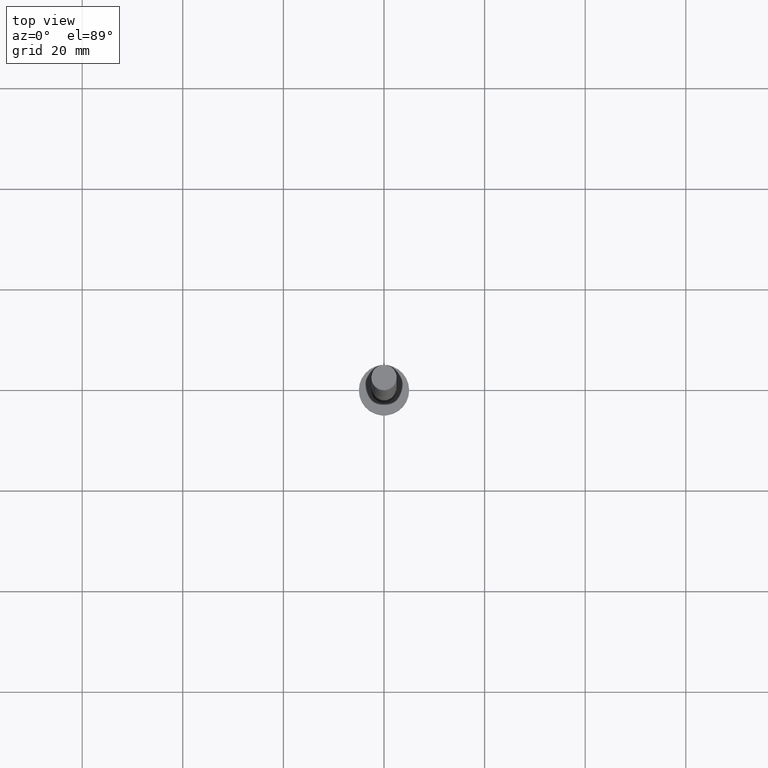
[diagram: clean part render]
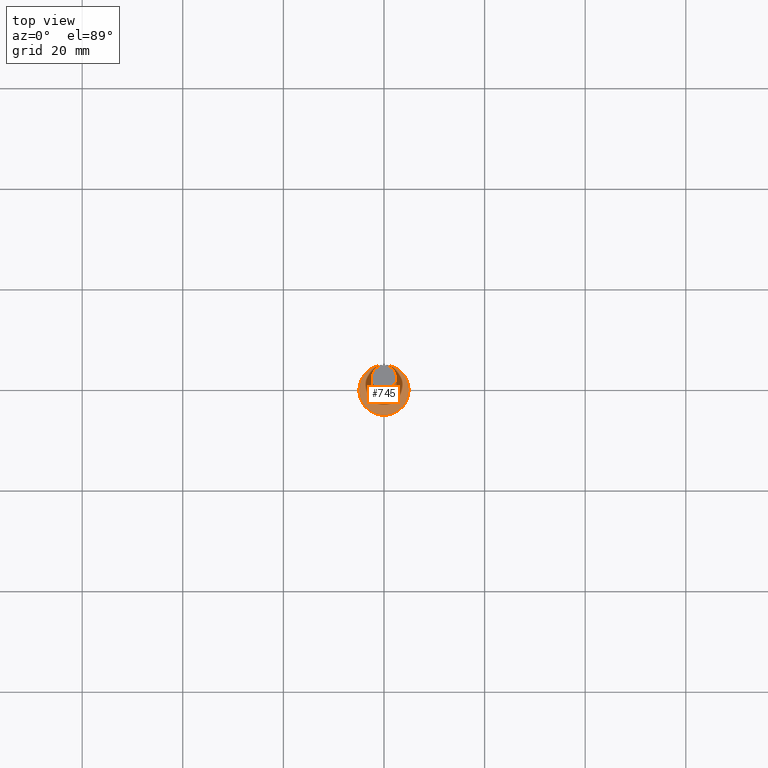
[diagram: same view with one face highlighted and labeled with its STEP entity id]
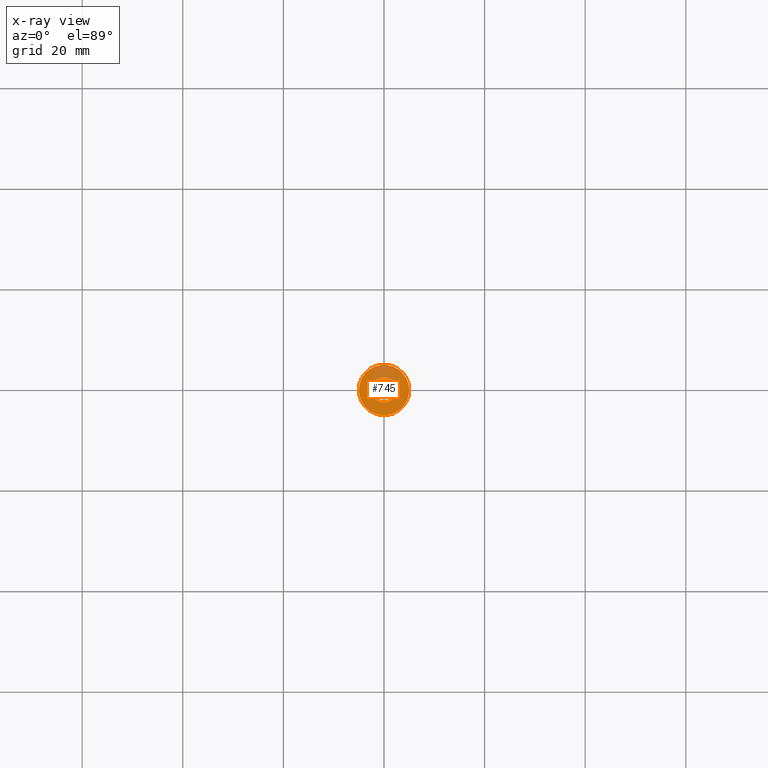
[diagram: x-ray of the same camera — body ghosted, the highlighted face saturated]
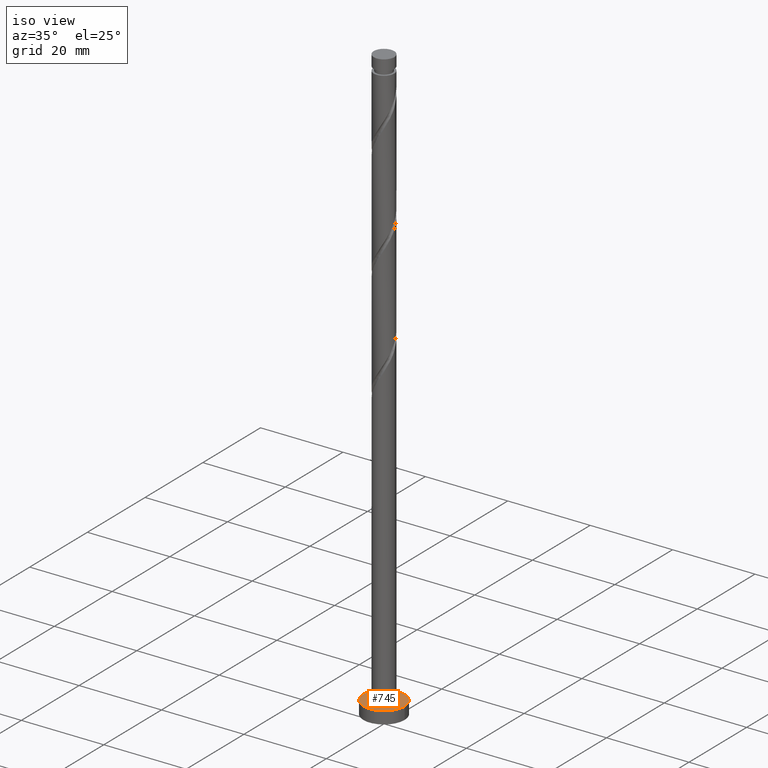
[diagram: same view with one face highlighted and labeled with its STEP entity id]
A machine part, top view. The second image highlights one B-rep face of the part: STEP entity #745.
The next image is the same camera in x-ray: the body ghosted, the highlighted face saturated — about 21% of this face is hidden behind the body in this view.
A second angle (iso view) of the same face is appended — the face is thin or edge-on in the first view.
In plain terms, the highlighted planar face has unit normal (0, 0, 1).
Its self-contained STEP definition (entity closure, byte-faithful):
#20 = CARTESIAN_POINT ( 'NONE',  ( 0.000000000000000000, 0.000000000000000000, 3.000000000000000000 ) ) ;
#60 = DIRECTION ( 'NONE',  ( 1.000000000000000000, 0.000000000000000000, 0.000000000000000000 ) ) ;
#67 = AXIS2_PLACEMENT_3D ( 'NONE', #706, #1027, #208 ) ;
#108 = VERTEX_POINT ( 'NONE', #1584 ) ;
#199 = AXIS2_PLACEMENT_3D ( 'NONE', #848, #1237, #581 ) ;
#208 = DIRECTION ( 'NONE',  ( 1.000000000000000000, 0.000000000000000000, -0.000000000000000000 ) ) ;
#296 = DIRECTION ( 'NONE',  ( 0.000000000000000000, 0.000000000000000000, 1.000000000000000000 ) ) ;
#308 = DIRECTION ( 'NONE',  ( 0.000000000000000000, 0.000000000000000000, 1.000000000000000000 ) ) ;
#333 = FACE_BOUND ( 'NONE', #922, .T. ) ;
#371 = AXIS2_PLACEMENT_3D ( 'NONE', #775, #782, #1162 ) ;
#497 = CARTESIAN_POINT ( 'NONE',  ( -2.500000000000000000, 0.000000000000000000, 3.000000000000000000 ) ) ;
#535 = CARTESIAN_POINT ( 'NONE',  ( 5.000000000000000000, 6.123233995736766282E-16, 3.000000000000000000 ) ) ;
#557 = AXIS2_PLACEMENT_3D ( 'NONE', #20, #296, #1314 ) ;
#581 = DIRECTION ( 'NONE',  ( 1.000000000000000000, 0.000000000000000000, 0.000000000000000000 ) ) ;
#598 = PLANE ( 'NONE',  #67 ) ;
#706 = CARTESIAN_POINT ( 'NONE',  ( 0.000000000000000000, 0.000000000000000000, 3.000000000000000000 ) ) ;
#745 = ADVANCED_FACE ( 'NONE', ( #333, #850 ), #598, .T. ) ;
#775 = CARTESIAN_POINT ( 'NONE',  ( 0.000000000000000000, 0.000000000000000000, 3.000000000000000000 ) ) ;
#782 = DIRECTION ( 'NONE',  ( 0.000000000000000000, 0.000000000000000000, 1.000000000000000000 ) ) ;
#786 = VERTEX_POINT ( 'NONE', #497 ) ;
#796 = CIRCLE ( 'NONE', #1631, 5.000000000000000000 ) ;
#830 = CARTESIAN_POINT ( 'NONE',  ( 2.500000000000000000, 3.061616997868383141E-16, 3.000000000000000000 ) ) ;
#848 = CARTESIAN_POINT ( 'NONE',  ( 0.000000000000000000, 0.000000000000000000, 3.000000000000000000 ) ) ;
#850 = FACE_OUTER_BOUND ( 'NONE', #1272, .T. ) ;
#922 = EDGE_LOOP ( 'NONE', ( #1282, #1429 ) ) ;
#930 = CIRCLE ( 'NONE', #199, 2.500000000000000000 ) ;
#1004 = EDGE_CURVE ( 'NONE', #1469, #108, #1231, .T. ) ;
#1027 = DIRECTION ( 'NONE',  ( 0.000000000000000000, 0.000000000000000000, 1.000000000000000000 ) ) ;
#1078 = ORIENTED_EDGE ( 'NONE', *, *, #1004, .T. ) ;
#1123 = EDGE_CURVE ( 'NONE', #786, #1219, #930, .T. ) ;
#1153 = CIRCLE ( 'NONE', #371, 2.500000000000000000 ) ;
#1162 = DIRECTION ( 'NONE',  ( 1.000000000000000000, 0.000000000000000000, 0.000000000000000000 ) ) ;
#1219 = VERTEX_POINT ( 'NONE', #830 ) ;
#1231 = CIRCLE ( 'NONE', #557, 5.000000000000000000 ) ;
#1237 = DIRECTION ( 'NONE',  ( 0.000000000000000000, 0.000000000000000000, 1.000000000000000000 ) ) ;
#1272 = EDGE_LOOP ( 'NONE', ( #1304, #1078 ) ) ;
#1282 = ORIENTED_EDGE ( 'NONE', *, *, #1123, .F. ) ;
#1304 = ORIENTED_EDGE ( 'NONE', *, *, #1586, .T. ) ;
#1314 = DIRECTION ( 'NONE',  ( 1.000000000000000000, 0.000000000000000000, 0.000000000000000000 ) ) ;
#1429 = ORIENTED_EDGE ( 'NONE', *, *, #1456, .F. ) ;
#1456 = EDGE_CURVE ( 'NONE', #1219, #786, #1153, .T. ) ;
#1469 = VERTEX_POINT ( 'NONE', #535 ) ;
#1584 = CARTESIAN_POINT ( 'NONE',  ( -5.000000000000000000, 0.000000000000000000, 3.000000000000000000 ) ) ;
#1586 = EDGE_CURVE ( 'NONE', #108, #1469, #796, .T. ) ;
#1611 = CARTESIAN_POINT ( 'NONE',  ( 0.000000000000000000, 0.000000000000000000, 3.000000000000000000 ) ) ;
#1631 = AXIS2_PLACEMENT_3D ( 'NONE', #1611, #308, #60 ) ;